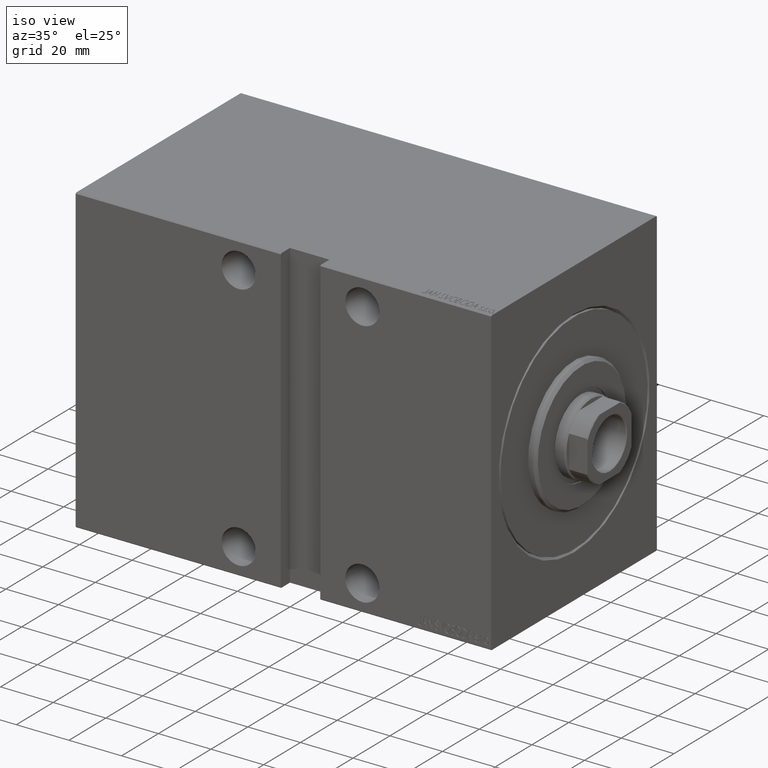
[diagram: clean part render]
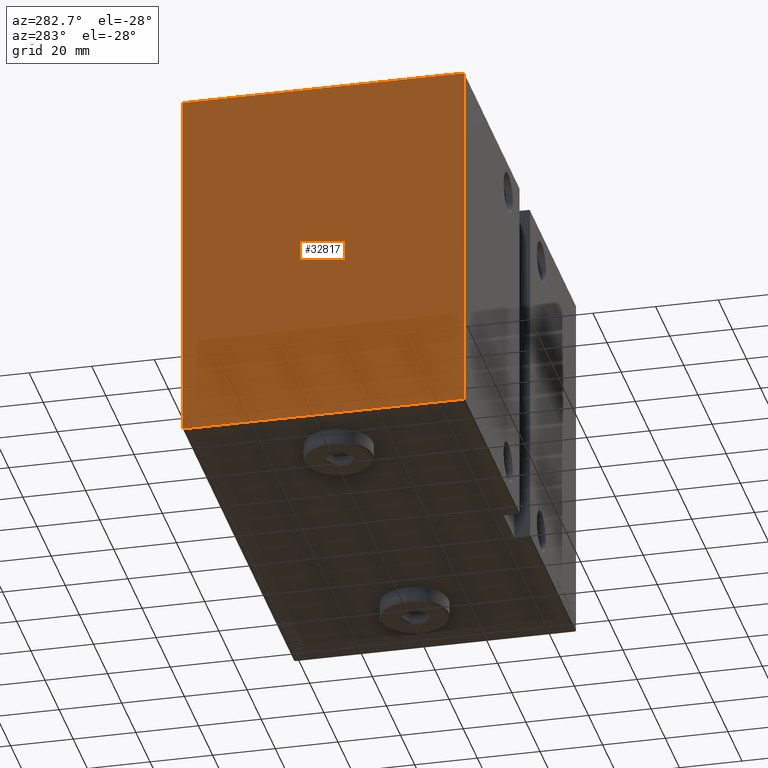
[diagram: tour spotlight — one face highlighted and labeled with its STEP entity id]
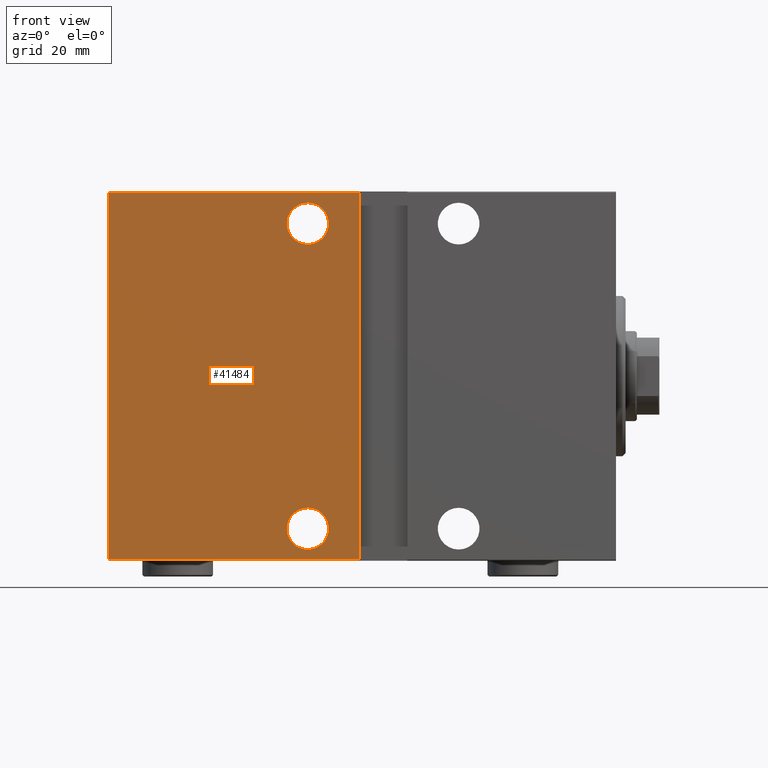
[diagram: tour spotlight — one face highlighted and labeled with its STEP entity id]
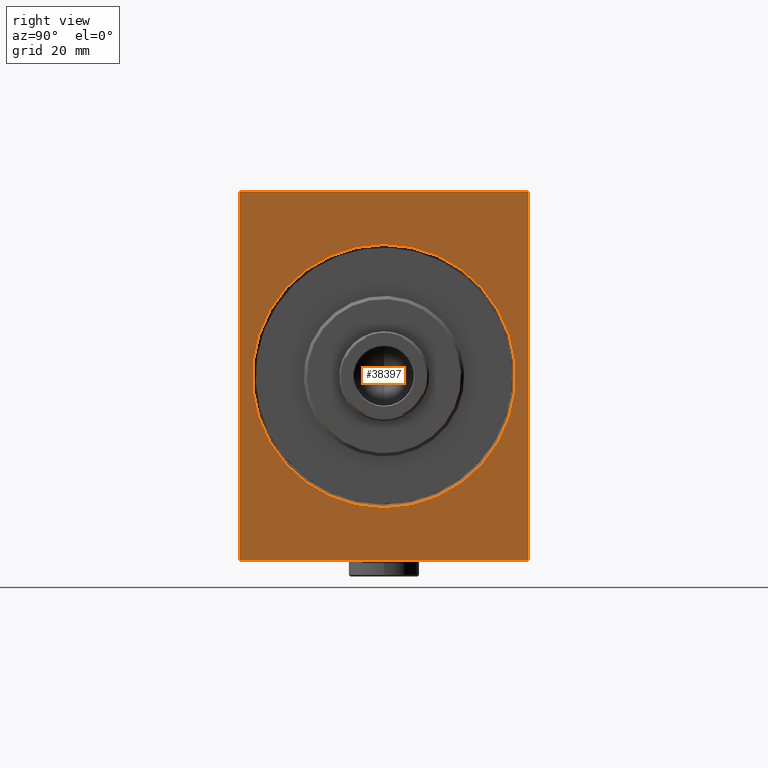
[diagram: tour spotlight — one face highlighted and labeled with its STEP entity id]
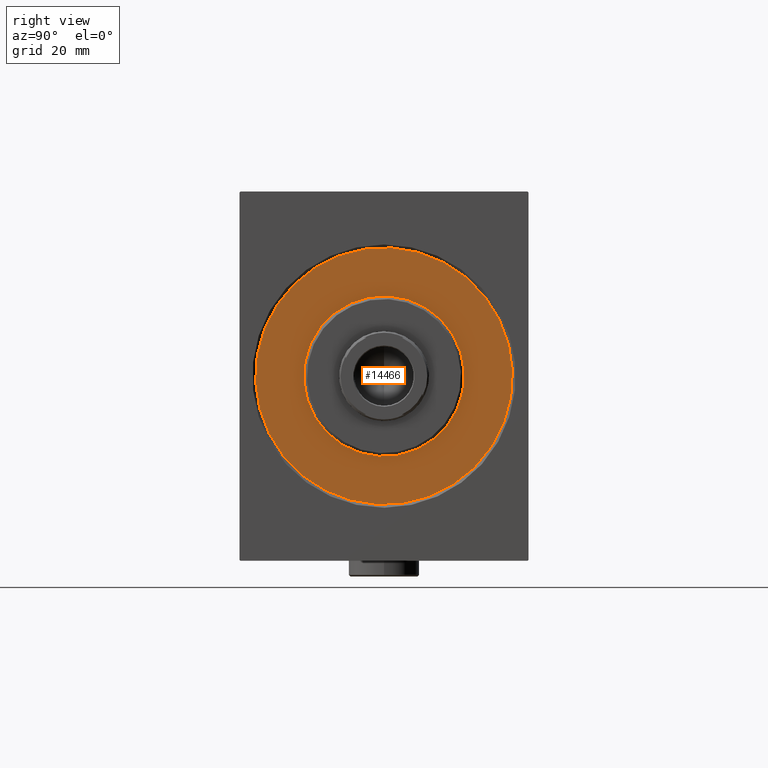
[diagram: tour spotlight — one face highlighted and labeled with its STEP entity id]
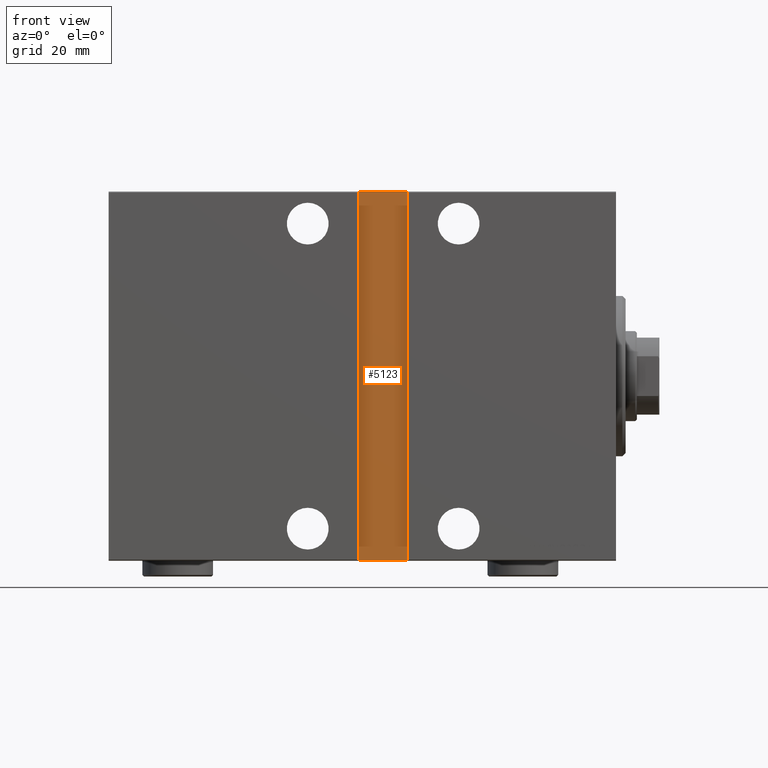
[diagram: tour spotlight — one face highlighted and labeled with its STEP entity id]
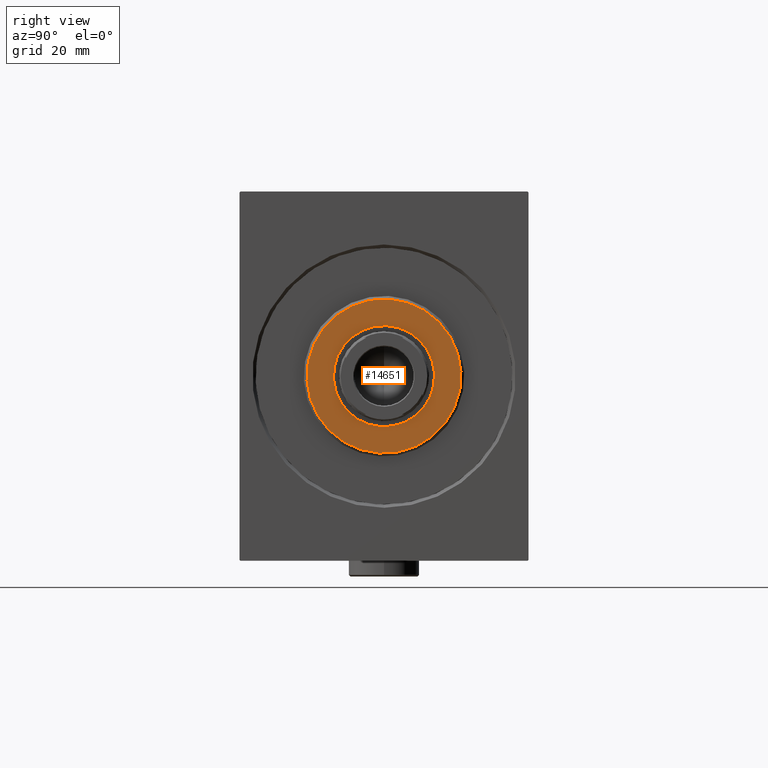
[diagram: tour spotlight — one face highlighted and labeled with its STEP entity id]
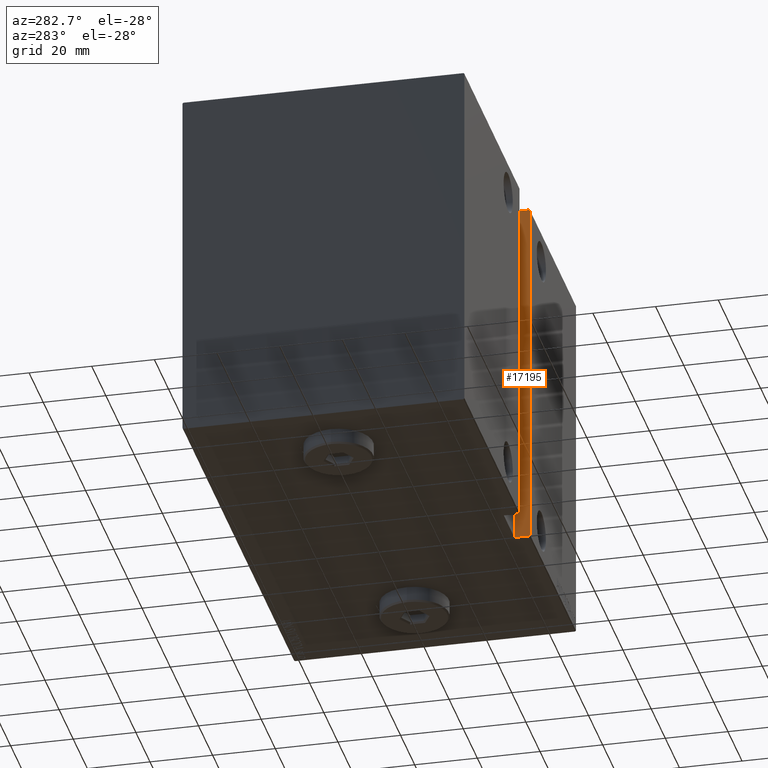
[diagram: tour spotlight — one face highlighted and labeled with its STEP entity id]
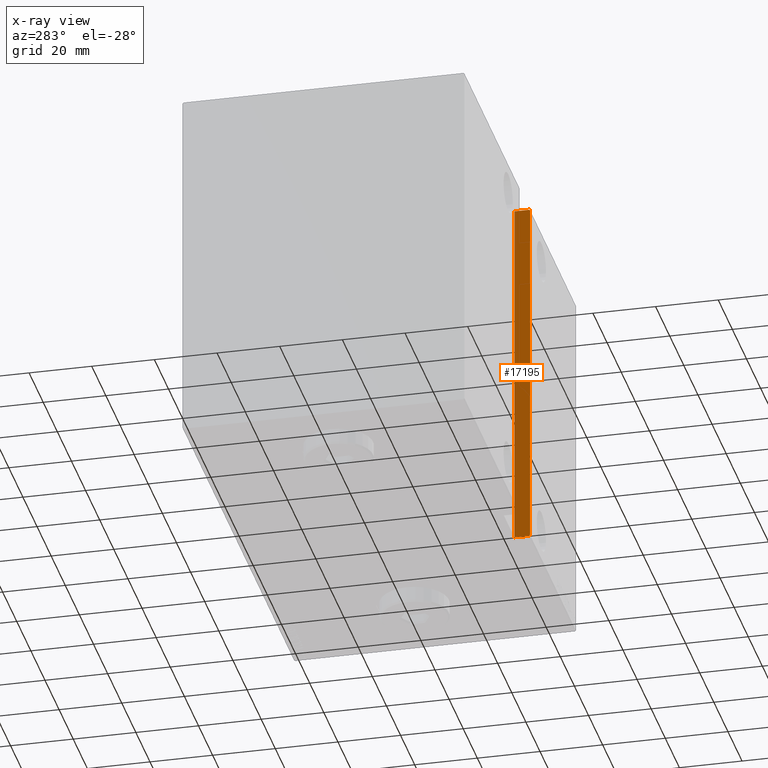
[diagram: x-ray of the same camera — body ghosted, this tour face saturated]
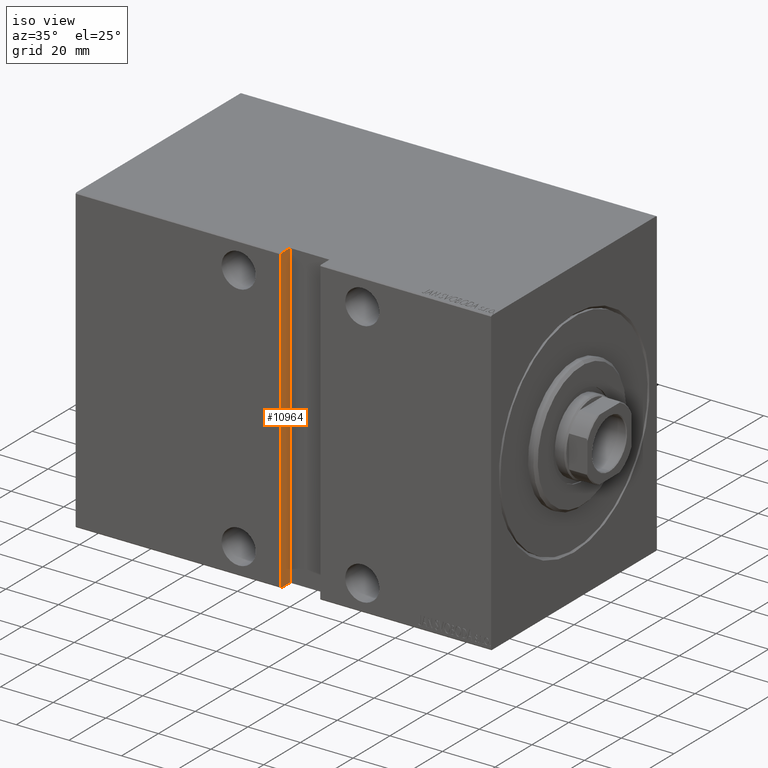
[diagram: tour spotlight — one face highlighted and labeled with its STEP entity id]
A machine part: a face-by-face anatomy tour. The part has 896 B-rep faces; the first image is the clean iso view, then the 8 largest visible faces are spotlighted one at a time (largest first), each with its STEP entity span.

Face 1 — auxiliary view, entity #32817. In plain terms, the highlighted planar face has unit normal (-1, -0, 0).
Definition (entity closure, byte-faithful):
#964 = EDGE_CURVE ( 'NONE', #18276, #14498, #41389, .T. ) ;
#1050 = VECTOR ( 'NONE', #1780, 1000.000000000000000 ) ;
#1780 = DIRECTION ( 'NONE',  ( 0.000000000000000000, 0.000000000000000000, -1.000000000000000000 ) ) ;
#2922 = DIRECTION ( 'NONE',  ( -0.000000000000000000, 0.7071067811865474617, 0.7071067811865474617 ) ) ;
#3777 = CARTESIAN_POINT ( 'NONE',  ( 158.0000000000000000, -51.10000000000000853, -51.10000000000000853 ) ) ;
#4077 = VECTOR ( 'NONE', #26246, 1000.000000000000114 ) ;
#4974 = ORIENTED_EDGE ( 'NONE', *, *, #34766, .T. ) ;
#5248 = VECTOR ( 'NONE', #33959, 1000.000000000000000 ) ;
#5304 = CARTESIAN_POINT ( 'NONE',  ( 158.0000000000000000, 0.000000000000000000, 0.000000000000000000 ) ) ;
#6036 = VERTEX_POINT ( 'NONE', #21885 ) ;
#6292 = ORIENTED_EDGE ( 'NONE', *, *, #11036, .T. ) ;
#6779 = VERTEX_POINT ( 'NONE', #24012 ) ;
#6945 = CARTESIAN_POINT ( 'NONE',  ( 158.0000000000000000, 45.00000000000000000, 57.50000000000000000 ) ) ;
#7689 = VERTEX_POINT ( 'NONE', #30496 ) ;
#8941 = LINE ( 'NONE', #39037, #27826 ) ;
#9773 = ORIENTED_EDGE ( 'NONE', *, *, #30019, .T. ) ;
#10048 = EDGE_CURVE ( 'NONE', #26257, #22293, #8941, .T. ) ;
#10626 = ORIENTED_EDGE ( 'NONE', *, *, #964, .T. ) ;
#11036 = EDGE_CURVE ( 'NONE', #16215, #7689, #37276, .T. ) ;
#13110 = CARTESIAN_POINT ( 'NONE',  ( 158.0000000000000000, 51.10000000000000853, -51.10000000000000853 ) ) ;
#13924 = ORIENTED_EDGE ( 'NONE', *, *, #42693, .T. ) ;
#14056 = EDGE_LOOP ( 'NONE', ( #9773, #34151, #19799, #4974, #6292, #13924, #23133, #10626 ) ) ;
#14417 = VECTOR ( 'NONE', #2922, 1000.000000000000114 ) ;
#14498 = VERTEX_POINT ( 'NONE', #17923 ) ;
#15241 = AXIS2_PLACEMENT_3D ( 'NONE', #5304, #31889, #18837 ) ;
#16215 = VERTEX_POINT ( 'NONE', #39485 ) ;
#17923 = CARTESIAN_POINT ( 'NONE',  ( 158.0000000000000000, -44.70000000000000284, -57.50000000000000711 ) ) ;
#18276 = VERTEX_POINT ( 'NONE', #31957 ) ;
#18837 = DIRECTION ( 'NONE',  ( -0.000000000000000000, 0.000000000000000000, -1.000000000000000000 ) ) ;
#18848 = LINE ( 'NONE', #28799, #1050 ) ;
#19799 = ORIENTED_EDGE ( 'NONE', *, *, #10048, .T. ) ;
#20286 = VECTOR ( 'NONE', #21196, 1000.000000000000114 ) ;
#20696 = CARTESIAN_POINT ( 'NONE',  ( 158.0000000000000000, -45.00000000000000000, -57.50000000000000711 ) ) ;
#21196 = DIRECTION ( 'NONE',  ( -0.000000000000000000, -0.7071067811865556774, 0.7071067811865392461 ) ) ;
#21268 = DIRECTION ( 'NONE',  ( -0.000000000000000000, 0.7071067811865474617, -0.7071067811865474617 ) ) ;
#21532 = VECTOR ( 'NONE', #30654, 1000.000000000000000 ) ;
#21885 = CARTESIAN_POINT ( 'NONE',  ( 158.0000000000000000, 44.69999999999997442, -57.50000000000000711 ) ) ;
#22293 = VERTEX_POINT ( 'NONE', #38269 ) ;
#23133 = ORIENTED_EDGE ( 'NONE', *, *, #29651, .T. ) ;
#23482 = VECTOR ( 'NONE', #21268, 1000.000000000000114 ) ;
#24012 = CARTESIAN_POINT ( 'NONE',  ( 158.0000000000000000, -45.00000000000000000, 57.20000000000001705 ) ) ;
#26246 = DIRECTION ( 'NONE',  ( -0.000000000000000000, -0.7071067811865474617, -0.7071067811865474617 ) ) ;
#26257 = VERTEX_POINT ( 'NONE', #42866 ) ;
#27714 = EDGE_CURVE ( 'NONE', #6036, #26257, #43644, .T. ) ;
#27826 = VECTOR ( 'NONE', #42370, 1000.000000000000000 ) ;
#28799 = CARTESIAN_POINT ( 'NONE',  ( 158.0000000000000000, -45.00000000000000000, 57.50000000000000711 ) ) ;
#29582 = CARTESIAN_POINT ( 'NONE',  ( 158.0000000000000000, -51.10000000000000853, 51.10000000000000853 ) ) ;
#29651 = EDGE_CURVE ( 'NONE', #6779, #18276, #18848, .T. ) ;
#30019 = EDGE_CURVE ( 'NONE', #14498, #6036, #31091, .T. ) ;
#30496 = CARTESIAN_POINT ( 'NONE',  ( 158.0000000000000000, -44.69999999999997442, 57.50000000000000711 ) ) ;
#30654 = DIRECTION ( 'NONE',  ( 0.000000000000000000, 1.000000000000000000, 0.000000000000000000 ) ) ;
#30943 = CARTESIAN_POINT ( 'NONE',  ( 158.0000000000000000, 51.09999999999949694, 51.10000000000068354 ) ) ;
#31091 = LINE ( 'NONE', #20696, #21532 ) ;
#31889 = DIRECTION ( 'NONE',  ( 1.000000000000000000, 0.000000000000000000, -0.000000000000000000 ) ) ;
#31957 = CARTESIAN_POINT ( 'NONE',  ( 158.0000000000000000, -45.00000000000000000, -57.19999999999998863 ) ) ;
#32101 = FACE_OUTER_BOUND ( 'NONE', #14056, .T. ) ;
#32817 = ADVANCED_FACE ( 'NONE', ( #32101 ), #35218, .T. ) ;
#33959 = DIRECTION ( 'NONE',  ( 0.000000000000000000, -1.000000000000000000, 7.709882115452476934E-17 ) ) ;
#34151 = ORIENTED_EDGE ( 'NONE', *, *, #27714, .T. ) ;
#34766 = EDGE_CURVE ( 'NONE', #22293, #16215, #38008, .T. ) ;
#35218 = PLANE ( 'NONE',  #15241 ) ;
#37276 = LINE ( 'NONE', #6945, #5248 ) ;
#38008 = LINE ( 'NONE', #30943, #20286 ) ;
#38269 = CARTESIAN_POINT ( 'NONE',  ( 158.0000000000000000, 45.00000000000000000, 57.20000000000001705 ) ) ;
#39037 = CARTESIAN_POINT ( 'NONE',  ( 158.0000000000000000, 45.00000000000000000, -57.50000000000000711 ) ) ;
#39485 = CARTESIAN_POINT ( 'NONE',  ( 158.0000000000000000, 44.70000000000003126, 57.50000000000000000 ) ) ;
#41389 = LINE ( 'NONE', #3777, #23482 ) ;
#42370 = DIRECTION ( 'NONE',  ( 0.000000000000000000, 0.000000000000000000, 1.000000000000000000 ) ) ;
#42693 = EDGE_CURVE ( 'NONE', #7689, #6779, #43064, .T. ) ;
#42866 = CARTESIAN_POINT ( 'NONE',  ( 158.0000000000000000, 45.00000000000000000, -57.20000000000001705 ) ) ;
#43064 = LINE ( 'NONE', #29582, #4077 ) ;
#43644 = LINE ( 'NONE', #13110, #14417 ) ;

Face 2 — front view, entity #41484. In plain terms, the highlighted planar face has unit normal (-0, 1, 0).
Definition (entity closure, byte-faithful):
#66 = DIRECTION ( 'NONE',  ( 0.000000000000000000, 1.000000000000000000, 0.000000000000000000 ) ) ;
#1466 = CIRCLE ( 'NONE', #7115, 6.500000000000005329 ) ;
#1671 = DIRECTION ( 'NONE',  ( -1.000000000000000000, 0.000000000000000000, 0.000000000000000000 ) ) ;
#1928 = CIRCLE ( 'NONE', #3369, 6.500000000000005329 ) ;
#2368 = EDGE_CURVE ( 'NONE', #21741, #37469, #1466, .T. ) ;
#2423 = EDGE_CURVE ( 'NONE', #8447, #7533, #37527, .T. ) ;
#3180 = DIRECTION ( 'NONE',  ( 0.000000000000000000, 0.000000000000000000, 1.000000000000000000 ) ) ;
#3369 = AXIS2_PLACEMENT_3D ( 'NONE', #3407, #66, #3180 ) ;
#3407 = CARTESIAN_POINT ( 'NONE',  ( 95.99999999999998579, 45.00000000000003553, -47.50000000000000000 ) ) ;
#3950 = EDGE_LOOP ( 'NONE', ( #40188, #43015, #39527, #14929 ) ) ;
#6622 = EDGE_CURVE ( 'NONE', #30734, #30838, #42889, .T. ) ;
#7115 = AXIS2_PLACEMENT_3D ( 'NONE', #27818, #41958, #28044 ) ;
#7533 = VERTEX_POINT ( 'NONE', #16570 ) ;
#7881 = CARTESIAN_POINT ( 'NONE',  ( 158.0000000000000000, 45.00000000000000000, -57.20000000000001705 ) ) ;
#8447 = VERTEX_POINT ( 'NONE', #40453 ) ;
#8461 = DIRECTION ( 'NONE',  ( 0.000000000000000000, 0.000000000000000000, 1.000000000000000000 ) ) ;
#8560 = EDGE_CURVE ( 'NONE', #30734, #22293, #40665, .T. ) ;
#8941 = LINE ( 'NONE', #39037, #27826 ) ;
#10048 = EDGE_CURVE ( 'NONE', #26257, #22293, #8941, .T. ) ;
#10717 = CARTESIAN_POINT ( 'NONE',  ( 158.0000000000000000, 45.00000000000000000, -57.50000000000000711 ) ) ;
#10782 = CARTESIAN_POINT ( 'NONE',  ( 158.0000000000000000, 45.00000000000000000, 57.20000000000004547 ) ) ;
#10843 = ORIENTED_EDGE ( 'NONE', *, *, #27668, .F. ) ;
#12658 = ORIENTED_EDGE ( 'NONE', *, *, #37919, .F. ) ;
#14324 = DIRECTION ( 'NONE',  ( 0.000000000000000000, 1.000000000000000000, 0.000000000000000000 ) ) ;
#14929 = ORIENTED_EDGE ( 'NONE', *, *, #8560, .T. ) ;
#16570 = CARTESIAN_POINT ( 'NONE',  ( 95.99999999999998579, 45.00000000000003553, 54.00000000000000711 ) ) ;
#17933 = EDGE_CURVE ( 'NONE', #26257, #30838, #35336, .T. ) ;
#20490 = PLANE ( 'NONE',  #38675 ) ;
#21465 = CARTESIAN_POINT ( 'NONE',  ( 95.99999999999998579, 45.00000000000003553, -54.00000000000000711 ) ) ;
#21741 = VERTEX_POINT ( 'NONE', #24276 ) ;
#22258 = VECTOR ( 'NONE', #1671, 1000.000000000000000 ) ;
#22293 = VERTEX_POINT ( 'NONE', #38269 ) ;
#23499 = EDGE_LOOP ( 'NONE', ( #31326, #12658 ) ) ;
#23804 = FACE_OUTER_BOUND ( 'NONE', #3950, .T. ) ;
#24105 = AXIS2_PLACEMENT_3D ( 'NONE', #41535, #14324, #41308 ) ;
#24276 = CARTESIAN_POINT ( 'NONE',  ( 95.99999999999998579, 45.00000000000003553, -40.99999999999999289 ) ) ;
#25295 = DIRECTION ( 'NONE',  ( 0.000000000000000000, 1.000000000000000000, 0.000000000000000000 ) ) ;
#25626 = DIRECTION ( 'NONE',  ( -1.206764157201257045E-16, 0.000000000000000000, -1.000000000000000000 ) ) ;
#26257 = VERTEX_POINT ( 'NONE', #42866 ) ;
#26696 = DIRECTION ( 'NONE',  ( 0.000000000000000000, -0.000000000000000000, -1.000000000000000000 ) ) ;
#27668 = EDGE_CURVE ( 'NONE', #7533, #8447, #34198, .T. ) ;
#27818 = CARTESIAN_POINT ( 'NONE',  ( 95.99999999999998579, 45.00000000000003553, -47.50000000000000000 ) ) ;
#27826 = VECTOR ( 'NONE', #42370, 1000.000000000000000 ) ;
#28044 = DIRECTION ( 'NONE',  ( 0.000000000000000000, 0.000000000000000000, 1.000000000000000000 ) ) ;
#28838 = CARTESIAN_POINT ( 'NONE',  ( 95.99999999999998579, 45.00000000000003553, 47.50000000000000000 ) ) ;
#30734 = VERTEX_POINT ( 'NONE', #35961 ) ;
#30838 = VERTEX_POINT ( 'NONE', #31063 ) ;
#31063 = CARTESIAN_POINT ( 'NONE',  ( 79.99999999999998579, 45.00000000000000000, -57.19999999999998863 ) ) ;
#31326 = ORIENTED_EDGE ( 'NONE', *, *, #2368, .F. ) ;
#33550 = CARTESIAN_POINT ( 'NONE',  ( 80.00000000000000000, 45.00000000000000000, 57.50000000000000711 ) ) ;
#34115 = VECTOR ( 'NONE', #25626, 1000.000000000000000 ) ;
#34198 = CIRCLE ( 'NONE', #43383, 6.500000000000005329 ) ;
#35336 = LINE ( 'NONE', #7881, #22258 ) ;
#35961 = CARTESIAN_POINT ( 'NONE',  ( 80.00000000000000000, 45.00000000000000000, 57.20000000000004547 ) ) ;
#36294 = VECTOR ( 'NONE', #37565, 1000.000000000000000 ) ;
#37099 = EDGE_LOOP ( 'NONE', ( #10843, #42976 ) ) ;
#37469 = VERTEX_POINT ( 'NONE', #21465 ) ;
#37527 = CIRCLE ( 'NONE', #24105, 6.500000000000005329 ) ;
#37565 = DIRECTION ( 'NONE',  ( 1.000000000000000000, 0.000000000000000000, 0.000000000000000000 ) ) ;
#37715 = DIRECTION ( 'NONE',  ( 0.000000000000000000, -1.000000000000000000, 0.000000000000000000 ) ) ;
#37919 = EDGE_CURVE ( 'NONE', #37469, #21741, #1928, .T. ) ;
#38269 = CARTESIAN_POINT ( 'NONE',  ( 158.0000000000000000, 45.00000000000000000, 57.20000000000001705 ) ) ;
#38675 = AXIS2_PLACEMENT_3D ( 'NONE', #10717, #37715, #26696 ) ;
#39037 = CARTESIAN_POINT ( 'NONE',  ( 158.0000000000000000, 45.00000000000000000, -57.50000000000000711 ) ) ;
#39527 = ORIENTED_EDGE ( 'NONE', *, *, #6622, .F. ) ;
#40188 = ORIENTED_EDGE ( 'NONE', *, *, #10048, .F. ) ;
#40453 = CARTESIAN_POINT ( 'NONE',  ( 95.99999999999998579, 45.00000000000003553, 40.99999999999999289 ) ) ;
#40603 = FACE_BOUND ( 'NONE', #23499, .T. ) ;
#40665 = LINE ( 'NONE', #10782, #36294 ) ;
#41032 = FACE_BOUND ( 'NONE', #37099, .T. ) ;
#41308 = DIRECTION ( 'NONE',  ( 0.000000000000000000, 0.000000000000000000, 1.000000000000000000 ) ) ;
#41484 = ADVANCED_FACE ( 'NONE', ( #40603, #41032, #23804 ), #20490, .F. ) ;
#41535 = CARTESIAN_POINT ( 'NONE',  ( 95.99999999999998579, 45.00000000000003553, 47.50000000000000000 ) ) ;
#41958 = DIRECTION ( 'NONE',  ( 0.000000000000000000, 1.000000000000000000, 0.000000000000000000 ) ) ;
#42370 = DIRECTION ( 'NONE',  ( 0.000000000000000000, 0.000000000000000000, 1.000000000000000000 ) ) ;
#42866 = CARTESIAN_POINT ( 'NONE',  ( 158.0000000000000000, 45.00000000000000000, -57.20000000000001705 ) ) ;
#42889 = LINE ( 'NONE', #33550, #34115 ) ;
#42976 = ORIENTED_EDGE ( 'NONE', *, *, #2423, .F. ) ;
#43015 = ORIENTED_EDGE ( 'NONE', *, *, #17933, .T. ) ;
#43383 = AXIS2_PLACEMENT_3D ( 'NONE', #28838, #25295, #8461 ) ;

Face 3 — right view, entity #38397. In plain terms, the highlighted planar face has unit normal (-1, -0, 0).
Definition (entity closure, byte-faithful):
#1338 = EDGE_CURVE ( 'NONE', #21367, #18859, #17370, .T. ) ;
#1433 = DIRECTION ( 'NONE',  ( 0.000000000000000000, 1.000000000000000000, 0.000000000000000000 ) ) ;
#2012 = CARTESIAN_POINT ( 'NONE',  ( 0.000000000000000000, 45.00000000000000000, 57.50000000000000000 ) ) ;
#2429 = DIRECTION ( 'NONE',  ( 1.000000000000000000, 0.000000000000000000, -0.000000000000000000 ) ) ;
#2965 = VECTOR ( 'NONE', #37055, 1000.000000000000114 ) ;
#3922 = CARTESIAN_POINT ( 'NONE',  ( 0.000000000000000000, 45.00000000000000000, 57.20000000000001705 ) ) ;
#4186 = CARTESIAN_POINT ( 'NONE',  ( 0.000000000000000000, -44.69999999999997442, 57.50000000000000711 ) ) ;
#4442 = EDGE_CURVE ( 'NONE', #42568, #8244, #10058, .T. ) ;
#4803 = CARTESIAN_POINT ( 'NONE',  ( 0.000000000000000000, -45.00000000000000000, 57.20000000000001705 ) ) ;
#5077 = ORIENTED_EDGE ( 'NONE', *, *, #38097, .T. ) ;
#5176 = LINE ( 'NONE', #31774, #34264 ) ;
#5303 = CARTESIAN_POINT ( 'NONE',  ( 0.000000000000000000, 0.000000000000000000, 0.000000000000000000 ) ) ;
#6037 = VECTOR ( 'NONE', #38537, 1000.000000000000114 ) ;
#6601 = FACE_BOUND ( 'NONE', #36843, .T. ) ;
#7489 = CIRCLE ( 'NONE', #15282, 41.00000000000000711 ) ;
#8244 = VERTEX_POINT ( 'NONE', #37831 ) ;
#9241 = VECTOR ( 'NONE', #14050, 1000.000000000000000 ) ;
#9487 = DIRECTION ( 'NONE',  ( 1.000000000000000000, 0.000000000000000000, -0.000000000000000000 ) ) ;
#9505 = DIRECTION ( 'NONE',  ( 0.000000000000000000, 0.000000000000000000, -1.000000000000000000 ) ) ;
#10058 = LINE ( 'NONE', #16057, #2965 ) ;
#10203 = DIRECTION ( 'NONE',  ( 0.000000000000000000, 0.000000000000000000, -1.000000000000000000 ) ) ;
#11112 = CARTESIAN_POINT ( 'NONE',  ( 0.000000000000000000, 45.00000000000000000, -57.20000000000001705 ) ) ;
#11320 = DIRECTION ( 'NONE',  ( 0.000000000000000000, 0.000000000000000000, -1.000000000000000000 ) ) ;
#11925 = VERTEX_POINT ( 'NONE', #40863 ) ;
#12330 = VECTOR ( 'NONE', #14716, 1000.000000000000114 ) ;
#12552 = ORIENTED_EDGE ( 'NONE', *, *, #36274, .F. ) ;
#13265 = PLANE ( 'NONE',  #28037 ) ;
#14022 = ORIENTED_EDGE ( 'NONE', *, *, #1338, .F. ) ;
#14050 = DIRECTION ( 'NONE',  ( 0.000000000000000000, 0.000000000000000000, 1.000000000000000000 ) ) ;
#14716 = DIRECTION ( 'NONE',  ( -0.000000000000000000, 0.7071067811865556774, -0.7071067811865392461 ) ) ;
#15282 = AXIS2_PLACEMENT_3D ( 'NONE', #5303, #2429, #9505 ) ;
#15526 = DIRECTION ( 'NONE',  ( 0.000000000000000000, -1.000000000000000000, 7.709882115452476934E-17 ) ) ;
#15592 = ORIENTED_EDGE ( 'NONE', *, *, #25668, .T. ) ;
#16057 = CARTESIAN_POINT ( 'NONE',  ( 0.000000000000000000, -44.70000000000000284, -57.50000000000000711 ) ) ;
#16160 = CARTESIAN_POINT ( 'NONE',  ( 0.000000000000000000, 0.000000000000000000, 0.000000000000000000 ) ) ;
#17370 = LINE ( 'NONE', #30873, #9241 ) ;
#17620 = LINE ( 'NONE', #24244, #42332 ) ;
#18859 = VERTEX_POINT ( 'NONE', #3922 ) ;
#19070 = CARTESIAN_POINT ( 'NONE',  ( 0.000000000000000000, -45.00000000000000000, 57.50000000000000711 ) ) ;
#19378 = EDGE_CURVE ( 'NONE', #21367, #26926, #21516, .T. ) ;
#19521 = CARTESIAN_POINT ( 'NONE',  ( 0.000000000000000000, 0.000000000000000000, 0.000000000000000000 ) ) ;
#19699 = FACE_OUTER_BOUND ( 'NONE', #27795, .T. ) ;
#20661 = EDGE_CURVE ( 'NONE', #28548, #11925, #7489, .T. ) ;
#21367 = VERTEX_POINT ( 'NONE', #42944 ) ;
#21516 = LINE ( 'NONE', #11112, #6037 ) ;
#21719 = CIRCLE ( 'NONE', #22447, 41.00000000000000711 ) ;
#22447 = AXIS2_PLACEMENT_3D ( 'NONE', #19521, #36985, #10203 ) ;
#22626 = ORIENTED_EDGE ( 'NONE', *, *, #20661, .T. ) ;
#23827 = ORIENTED_EDGE ( 'NONE', *, *, #30128, .T. ) ;
#24035 = DIRECTION ( 'NONE',  ( -0.000000000000000000, 0.7071067811865474617, 0.7071067811865474617 ) ) ;
#24244 = CARTESIAN_POINT ( 'NONE',  ( 0.000000000000000000, -45.00000000000000000, 57.20000000000001705 ) ) ;
#25222 = VERTEX_POINT ( 'NONE', #4186 ) ;
#25439 = VERTEX_POINT ( 'NONE', #4803 ) ;
#25668 = EDGE_CURVE ( 'NONE', #25439, #25222, #17620, .T. ) ;
#26926 = VERTEX_POINT ( 'NONE', #39436 ) ;
#27795 = EDGE_LOOP ( 'NONE', ( #38335, #23827, #14022, #42734, #34980, #42839, #12552, #15592 ) ) ;
#28037 = AXIS2_PLACEMENT_3D ( 'NONE', #16160, #9487, #36504 ) ;
#28548 = VERTEX_POINT ( 'NONE', #43434 ) ;
#30128 = EDGE_CURVE ( 'NONE', #42103, #18859, #35492, .T. ) ;
#30413 = EDGE_CURVE ( 'NONE', #42103, #25222, #39629, .T. ) ;
#30604 = CARTESIAN_POINT ( 'NONE',  ( 0.000000000000000000, -44.70000000000000284, -57.50000000000000711 ) ) ;
#30705 = EDGE_CURVE ( 'NONE', #42568, #26926, #5176, .T. ) ;
#30873 = CARTESIAN_POINT ( 'NONE',  ( 0.000000000000000000, 45.00000000000000000, -57.50000000000000711 ) ) ;
#31774 = CARTESIAN_POINT ( 'NONE',  ( 0.000000000000000000, -45.00000000000000000, -57.50000000000000711 ) ) ;
#34264 = VECTOR ( 'NONE', #1433, 1000.000000000000000 ) ;
#34980 = ORIENTED_EDGE ( 'NONE', *, *, #30705, .F. ) ;
#35492 = LINE ( 'NONE', #41904, #12330 ) ;
#35881 = LINE ( 'NONE', #19070, #42178 ) ;
#36274 = EDGE_CURVE ( 'NONE', #25439, #8244, #35881, .T. ) ;
#36504 = DIRECTION ( 'NONE',  ( -0.000000000000000000, 0.000000000000000000, -1.000000000000000000 ) ) ;
#36843 = EDGE_LOOP ( 'NONE', ( #5077, #22626 ) ) ;
#36985 = DIRECTION ( 'NONE',  ( 1.000000000000000000, 0.000000000000000000, -0.000000000000000000 ) ) ;
#37055 = DIRECTION ( 'NONE',  ( 0.000000000000000000, -0.7071067811865474617, 0.7071067811865474617 ) ) ;
#37831 = CARTESIAN_POINT ( 'NONE',  ( 0.000000000000000000, -45.00000000000000000, -57.19999999999998863 ) ) ;
#38060 = CARTESIAN_POINT ( 'NONE',  ( 0.000000000000000000, 44.70000000000003126, 57.50000000000000000 ) ) ;
#38097 = EDGE_CURVE ( 'NONE', #11925, #28548, #21719, .T. ) ;
#38335 = ORIENTED_EDGE ( 'NONE', *, *, #30413, .F. ) ;
#38397 = ADVANCED_FACE ( 'NONE', ( #6601, #19699 ), #13265, .F. ) ;
#38483 = VECTOR ( 'NONE', #15526, 1000.000000000000000 ) ;
#38537 = DIRECTION ( 'NONE',  ( -0.000000000000000000, -0.7071067811865474617, -0.7071067811865474617 ) ) ;
#39436 = CARTESIAN_POINT ( 'NONE',  ( 0.000000000000000000, 44.69999999999997442, -57.50000000000000711 ) ) ;
#39629 = LINE ( 'NONE', #2012, #38483 ) ;
#40863 = CARTESIAN_POINT ( 'NONE',  ( 0.000000000000000000, 0.000000000000000000, 41.00000000000000711 ) ) ;
#41904 = CARTESIAN_POINT ( 'NONE',  ( 0.000000000000000000, 44.70000000000003126, 57.50000000000000000 ) ) ;
#42103 = VERTEX_POINT ( 'NONE', #38060 ) ;
#42178 = VECTOR ( 'NONE', #11320, 1000.000000000000000 ) ;
#42332 = VECTOR ( 'NONE', #24035, 1000.000000000000114 ) ;
#42568 = VERTEX_POINT ( 'NONE', #30604 ) ;
#42734 = ORIENTED_EDGE ( 'NONE', *, *, #19378, .T. ) ;
#42839 = ORIENTED_EDGE ( 'NONE', *, *, #4442, .T. ) ;
#42944 = CARTESIAN_POINT ( 'NONE',  ( 0.000000000000000000, 45.00000000000000000, -57.20000000000001705 ) ) ;
#43434 = CARTESIAN_POINT ( 'NONE',  ( 0.000000000000000000, 5.021051876504148963E-15, -41.00000000000000711 ) ) ;

Face 4 — right view, entity #14466. In plain terms, the highlighted planar face has unit normal (-1, 0, 0).
Definition (entity closure, byte-faithful):
#41 = EDGE_CURVE ( 'NONE', #13740, #18207, #33350, .T. ) ;
#1180 = AXIS2_PLACEMENT_3D ( 'NONE', #2101, #15616, #29111 ) ;
#2101 = CARTESIAN_POINT ( 'NONE',  ( 0.000000000000000000, 0.000000000000000000, 0.000000000000000000 ) ) ;
#2664 = CARTESIAN_POINT ( 'NONE',  ( 0.000000000000000000, 3.061616997868383043E-15, -25.00000000000000000 ) ) ;
#2671 = PLANE ( 'NONE',  #34302 ) ;
#3476 = EDGE_LOOP ( 'NONE', ( #34755, #10908 ) ) ;
#4503 = DIRECTION ( 'NONE',  ( 1.000000000000000000, -0.000000000000000000, 0.000000000000000000 ) ) ;
#6875 = DIRECTION ( 'NONE',  ( 1.000000000000000000, -0.000000000000000000, 0.000000000000000000 ) ) ;
#8580 = AXIS2_PLACEMENT_3D ( 'NONE', #26596, #6875, #33244 ) ;
#10908 = ORIENTED_EDGE ( 'NONE', *, *, #41, .F. ) ;
#12521 = CARTESIAN_POINT ( 'NONE',  ( 0.000000000000000000, 0.000000000000000000, -40.00000000000000000 ) ) ;
#13064 = DIRECTION ( 'NONE',  ( -1.000000000000000000, 0.000000000000000000, 0.000000000000000000 ) ) ;
#13306 = EDGE_CURVE ( 'NONE', #18207, #13740, #36396, .T. ) ;
#13504 = FACE_OUTER_BOUND ( 'NONE', #16773, .T. ) ;
#13740 = VERTEX_POINT ( 'NONE', #2664 ) ;
#13799 = CIRCLE ( 'NONE', #42056, 40.00000000000000000 ) ;
#14266 = CARTESIAN_POINT ( 'NONE',  ( 0.000000000000000000, 0.000000000000000000, 25.00000000000000000 ) ) ;
#14466 = ADVANCED_FACE ( 'NONE', ( #16622, #13504 ), #2671, .F. ) ;
#14763 = EDGE_CURVE ( 'NONE', #21911, #33810, #13799, .T. ) ;
#15616 = DIRECTION ( 'NONE',  ( -1.000000000000000000, 0.000000000000000000, 0.000000000000000000 ) ) ;
#16602 = AXIS2_PLACEMENT_3D ( 'NONE', #37927, #4503, #27549 ) ;
#16622 = FACE_BOUND ( 'NONE', #3476, .T. ) ;
#16773 = EDGE_LOOP ( 'NONE', ( #36375, #35092 ) ) ;
#18207 = VERTEX_POINT ( 'NONE', #14266 ) ;
#21911 = VERTEX_POINT ( 'NONE', #12521 ) ;
#23601 = EDGE_CURVE ( 'NONE', #33810, #21911, #40078, .T. ) ;
#26596 = CARTESIAN_POINT ( 'NONE',  ( 0.000000000000000000, 0.000000000000000000, 0.000000000000000000 ) ) ;
#27549 = DIRECTION ( 'NONE',  ( 0.000000000000000000, 0.000000000000000000, -1.000000000000000000 ) ) ;
#28747 = CARTESIAN_POINT ( 'NONE',  ( 0.000000000000000000, 4.898587196589413026E-15, 40.00000000000000000 ) ) ;
#29111 = DIRECTION ( 'NONE',  ( 0.000000000000000000, 0.000000000000000000, 1.000000000000000000 ) ) ;
#29895 = CARTESIAN_POINT ( 'NONE',  ( 0.000000000000000000, 0.000000000000000000, 0.000000000000000000 ) ) ;
#33244 = DIRECTION ( 'NONE',  ( 0.000000000000000000, 0.000000000000000000, -1.000000000000000000 ) ) ;
#33350 = CIRCLE ( 'NONE', #8580, 25.00000000000000000 ) ;
#33810 = VERTEX_POINT ( 'NONE', #28747 ) ;
#34302 = AXIS2_PLACEMENT_3D ( 'NONE', #29895, #13064, #40065 ) ;
#34755 = ORIENTED_EDGE ( 'NONE', *, *, #13306, .F. ) ;
#35092 = ORIENTED_EDGE ( 'NONE', *, *, #23601, .F. ) ;
#36375 = ORIENTED_EDGE ( 'NONE', *, *, #14763, .F. ) ;
#36396 = CIRCLE ( 'NONE', #16602, 25.00000000000000000 ) ;
#36490 = CARTESIAN_POINT ( 'NONE',  ( 0.000000000000000000, 0.000000000000000000, 0.000000000000000000 ) ) ;
#37927 = CARTESIAN_POINT ( 'NONE',  ( 0.000000000000000000, 0.000000000000000000, 0.000000000000000000 ) ) ;
#39574 = DIRECTION ( 'NONE',  ( 0.000000000000000000, 0.000000000000000000, 1.000000000000000000 ) ) ;
#40065 = DIRECTION ( 'NONE',  ( 0.000000000000000000, 0.000000000000000000, 1.000000000000000000 ) ) ;
#40078 = CIRCLE ( 'NONE', #1180, 40.00000000000000000 ) ;
#42056 = AXIS2_PLACEMENT_3D ( 'NONE', #36490, #43115, #39574 ) ;
#43115 = DIRECTION ( 'NONE',  ( -1.000000000000000000, 0.000000000000000000, 0.000000000000000000 ) ) ;

Face 5 — front view, entity #5123. In plain terms, the highlighted planar face has unit normal (0, -1, -0).
Definition (entity closure, byte-faithful):
#90 = DIRECTION ( 'NONE',  ( -0.000000000000000000, 1.000000000000000000, 0.000000000000000000 ) ) ;
#218 = DIRECTION ( 'NONE',  ( 1.000000000000000000, 0.000000000000000000, 0.000000000000000000 ) ) ;
#2839 = EDGE_CURVE ( 'NONE', #13969, #17073, #20593, .T. ) ;
#3662 = CARTESIAN_POINT ( 'NONE',  ( 65.00000000000000000, 40.00000000000000000, -57.50000000000000711 ) ) ;
#3854 = CARTESIAN_POINT ( 'NONE',  ( 65.00000000000001421, 40.00000000000000000, 57.50000000000000711 ) ) ;
#4776 = DIRECTION ( 'NONE',  ( -1.206764157201257045E-16, 0.000000000000000000, -1.000000000000000000 ) ) ;
#5123 = ADVANCED_FACE ( 'NONE', ( #28676 ), #11855, .T. ) ;
#7144 = CARTESIAN_POINT ( 'NONE',  ( 80.00000000000000000, 40.00000000000000000, 57.50000000000000711 ) ) ;
#8086 = LINE ( 'NONE', #24704, #10910 ) ;
#8895 = VERTEX_POINT ( 'NONE', #3662 ) ;
#9603 = ORIENTED_EDGE ( 'NONE', *, *, #42350, .F. ) ;
#9983 = VECTOR ( 'NONE', #218, 1000.000000000000000 ) ;
#10779 = EDGE_CURVE ( 'NONE', #17073, #18375, #14354, .T. ) ;
#10910 = VECTOR ( 'NONE', #4776, 1000.000000000000000 ) ;
#11116 = EDGE_LOOP ( 'NONE', ( #9603, #24574, #19346, #18493 ) ) ;
#11855 = PLANE ( 'NONE',  #38996 ) ;
#12005 = EDGE_CURVE ( 'NONE', #13969, #8895, #8086, .T. ) ;
#13969 = VERTEX_POINT ( 'NONE', #3854 ) ;
#14354 = LINE ( 'NONE', #34057, #28580 ) ;
#16857 = CARTESIAN_POINT ( 'NONE',  ( 65.00000000000001421, 40.00000000000000000, 57.50000000000000711 ) ) ;
#17073 = VERTEX_POINT ( 'NONE', #7144 ) ;
#18375 = VERTEX_POINT ( 'NONE', #42127 ) ;
#18493 = ORIENTED_EDGE ( 'NONE', *, *, #10779, .T. ) ;
#19346 = ORIENTED_EDGE ( 'NONE', *, *, #2839, .T. ) ;
#20593 = LINE ( 'NONE', #16857, #9983 ) ;
#23569 = DIRECTION ( 'NONE',  ( 0.000000000000000000, -0.000000000000000000, 1.000000000000000000 ) ) ;
#24504 = LINE ( 'NONE', #40658, #40819 ) ;
#24574 = ORIENTED_EDGE ( 'NONE', *, *, #12005, .F. ) ;
#24704 = CARTESIAN_POINT ( 'NONE',  ( 65.00000000000001421, 40.00000000000000000, 57.50000000000000711 ) ) ;
#25353 = CARTESIAN_POINT ( 'NONE',  ( 0.000000000000000000, 40.00000000000000000, 0.000000000000000000 ) ) ;
#26983 = DIRECTION ( 'NONE',  ( -1.206764157201257045E-16, 0.000000000000000000, -1.000000000000000000 ) ) ;
#28580 = VECTOR ( 'NONE', #26983, 1000.000000000000000 ) ;
#28676 = FACE_OUTER_BOUND ( 'NONE', #11116, .T. ) ;
#34057 = CARTESIAN_POINT ( 'NONE',  ( 80.00000000000000000, 40.00000000000000000, 57.50000000000000711 ) ) ;
#37771 = DIRECTION ( 'NONE',  ( 1.000000000000000000, 0.000000000000000000, 0.000000000000000000 ) ) ;
#38996 = AXIS2_PLACEMENT_3D ( 'NONE', #25353, #90, #23569 ) ;
#40658 = CARTESIAN_POINT ( 'NONE',  ( 65.00000000000000000, 40.00000000000000000, -57.50000000000000711 ) ) ;
#40819 = VECTOR ( 'NONE', #37771, 1000.000000000000000 ) ;
#42127 = CARTESIAN_POINT ( 'NONE',  ( 80.00000000000000000, 39.99999999999999289, -57.50000000000000711 ) ) ;
#42350 = EDGE_CURVE ( 'NONE', #8895, #18375, #24504, .T. ) ;

Face 6 — right view, entity #14651. In plain terms, the highlighted planar face has unit normal (1, -0, -0).
Definition (entity closure, byte-faithful):
#410 = ORIENTED_EDGE ( 'NONE', *, *, #10120, .F. ) ;
#1063 = AXIS2_PLACEMENT_3D ( 'NONE', #28318, #8158, #28529 ) ;
#1679 = AXIS2_PLACEMENT_3D ( 'NONE', #10045, #16046, #9378 ) ;
#3521 = VERTEX_POINT ( 'NONE', #7623 ) ;
#5297 = AXIS2_PLACEMENT_3D ( 'NONE', #38787, #28839, #42328 ) ;
#7623 = CARTESIAN_POINT ( 'NONE',  ( 3.000000000000000000, 1.928818708657081344E-15, 15.75000000000000000 ) ) ;
#7866 = CARTESIAN_POINT ( 'NONE',  ( 3.000000000000000000, 0.000000000000000000, -15.75000000000000000 ) ) ;
#8158 = DIRECTION ( 'NONE',  ( 1.000000000000000000, -0.000000000000000000, 0.000000000000000000 ) ) ;
#8449 = DIRECTION ( 'NONE',  ( 0.000000000000000000, 0.000000000000000000, -1.000000000000000000 ) ) ;
#9378 = DIRECTION ( 'NONE',  ( 0.000000000000000000, 0.000000000000000000, -1.000000000000000000 ) ) ;
#9633 = CIRCLE ( 'NONE', #42829, 15.75000000000000000 ) ;
#10045 = CARTESIAN_POINT ( 'NONE',  ( 3.000000000000000000, 0.000000000000000000, 0.000000000000000000 ) ) ;
#10095 = VERTEX_POINT ( 'NONE', #30204 ) ;
#10120 = EDGE_CURVE ( 'NONE', #23618, #3521, #23610, .T. ) ;
#10312 = DIRECTION ( 'NONE',  ( 1.000000000000000000, -0.000000000000000000, 0.000000000000000000 ) ) ;
#14651 = ADVANCED_FACE ( 'NONE', ( #15035, #14825 ), #42237, .T. ) ;
#14825 = FACE_BOUND ( 'NONE', #29246, .T. ) ;
#15035 = FACE_OUTER_BOUND ( 'NONE', #29107, .T. ) ;
#16046 = DIRECTION ( 'NONE',  ( 1.000000000000000000, 0.000000000000000000, 0.000000000000000000 ) ) ;
#16487 = EDGE_CURVE ( 'NONE', #3521, #23618, #9633, .T. ) ;
#21366 = CARTESIAN_POINT ( 'NONE',  ( 3.000000000000000000, 0.000000000000000000, 0.000000000000000000 ) ) ;
#21844 = AXIS2_PLACEMENT_3D ( 'NONE', #21366, #10312, #34861 ) ;
#22385 = CARTESIAN_POINT ( 'NONE',  ( 3.000000000000000000, 3.000384657911015074E-15, -23.99999999999999289 ) ) ;
#23271 = CIRCLE ( 'NONE', #21844, 23.99999999999999289 ) ;
#23610 = CIRCLE ( 'NONE', #1679, 15.75000000000000000 ) ;
#23618 = VERTEX_POINT ( 'NONE', #7866 ) ;
#25185 = ORIENTED_EDGE ( 'NONE', *, *, #16487, .F. ) ;
#25781 = EDGE_CURVE ( 'NONE', #10095, #36122, #23271, .T. ) ;
#26372 = DIRECTION ( 'NONE',  ( 1.000000000000000000, 0.000000000000000000, 0.000000000000000000 ) ) ;
#28318 = CARTESIAN_POINT ( 'NONE',  ( 3.000000000000000000, 0.000000000000000000, 0.000000000000000000 ) ) ;
#28529 = DIRECTION ( 'NONE',  ( 0.000000000000000000, 0.000000000000000000, -1.000000000000000000 ) ) ;
#28839 = DIRECTION ( 'NONE',  ( 1.000000000000000000, -0.000000000000000000, 0.000000000000000000 ) ) ;
#29107 = EDGE_LOOP ( 'NONE', ( #38240, #39933 ) ) ;
#29246 = EDGE_LOOP ( 'NONE', ( #410, #25185 ) ) ;
#30204 = CARTESIAN_POINT ( 'NONE',  ( 3.000000000000000000, 0.000000000000000000, 23.99999999999999289 ) ) ;
#31786 = EDGE_CURVE ( 'NONE', #36122, #10095, #37110, .T. ) ;
#34861 = DIRECTION ( 'NONE',  ( 0.000000000000000000, 0.000000000000000000, -1.000000000000000000 ) ) ;
#36122 = VERTEX_POINT ( 'NONE', #22385 ) ;
#37110 = CIRCLE ( 'NONE', #5297, 23.99999999999999289 ) ;
#38240 = ORIENTED_EDGE ( 'NONE', *, *, #25781, .T. ) ;
#38787 = CARTESIAN_POINT ( 'NONE',  ( 3.000000000000000000, 0.000000000000000000, 0.000000000000000000 ) ) ;
#39933 = ORIENTED_EDGE ( 'NONE', *, *, #31786, .T. ) ;
#42237 = PLANE ( 'NONE',  #1063 ) ;
#42328 = DIRECTION ( 'NONE',  ( 0.000000000000000000, 0.000000000000000000, -1.000000000000000000 ) ) ;
#42829 = AXIS2_PLACEMENT_3D ( 'NONE', #43184, #26372, #8449 ) ;
#43184 = CARTESIAN_POINT ( 'NONE',  ( 3.000000000000000000, 0.000000000000000000, 0.000000000000000000 ) ) ;

Face 7 — auxiliary view, entity #17195. An x-ray twin of the same camera follows (body ghosted, this face saturated) — the face is partly hidden behind the body. In plain terms, the highlighted planar face has unit normal (-1, -0, -0).
Definition (entity closure, byte-faithful):
#579 = VERTEX_POINT ( 'NONE', #30845 ) ;
#1166 = FACE_OUTER_BOUND ( 'NONE', #11898, .T. ) ;
#2082 = ORIENTED_EDGE ( 'NONE', *, *, #24582, .F. ) ;
#2945 = CARTESIAN_POINT ( 'NONE',  ( 65.00000000000001421, 40.00000000000000000, 57.50000000000000711 ) ) ;
#3662 = CARTESIAN_POINT ( 'NONE',  ( 65.00000000000000000, 40.00000000000000000, -57.50000000000000711 ) ) ;
#3854 = CARTESIAN_POINT ( 'NONE',  ( 65.00000000000001421, 40.00000000000000000, 57.50000000000000711 ) ) ;
#4264 = CARTESIAN_POINT ( 'NONE',  ( 65.00000000000000000, 99.85000000000002274, -2.350000000000004974 ) ) ;
#4776 = DIRECTION ( 'NONE',  ( -1.206764157201257045E-16, 0.000000000000000000, -1.000000000000000000 ) ) ;
#4823 = EDGE_CURVE ( 'NONE', #20179, #21059, #15452, .T. ) ;
#4871 = ORIENTED_EDGE ( 'NONE', *, *, #26731, .T. ) ;
#6995 = LINE ( 'NONE', #31118, #30951 ) ;
#7492 = AXIS2_PLACEMENT_3D ( 'NONE', #35465, #21760, #35257 ) ;
#7853 = ORIENTED_EDGE ( 'NONE', *, *, #18444, .F. ) ;
#8086 = LINE ( 'NONE', #24704, #10910 ) ;
#8895 = VERTEX_POINT ( 'NONE', #3662 ) ;
#10671 = ORIENTED_EDGE ( 'NONE', *, *, #12005, .T. ) ;
#10910 = VECTOR ( 'NONE', #4776, 1000.000000000000000 ) ;
#11131 = DIRECTION ( 'NONE',  ( 8.533111188498778777E-17, 0.7071067811865474617, 0.7071067811865474617 ) ) ;
#11688 = CARTESIAN_POINT ( 'NONE',  ( 65.00000000000000000, 45.00000000000000000, -57.19999999999998863 ) ) ;
#11898 = EDGE_LOOP ( 'NONE', ( #2082, #41989, #7853, #10671, #18536, #4871 ) ) ;
#12005 = EDGE_CURVE ( 'NONE', #13969, #8895, #8086, .T. ) ;
#13861 = DIRECTION ( 'NONE',  ( -0.000000000000000000, 1.000000000000000000, -0.000000000000000000 ) ) ;
#13969 = VERTEX_POINT ( 'NONE', #3854 ) ;
#15383 = VECTOR ( 'NONE', #42113, 1000.000000000000000 ) ;
#15452 = LINE ( 'NONE', #28726, #42539 ) ;
#17195 = ADVANCED_FACE ( 'NONE', ( #1166 ), #34819, .T. ) ;
#18444 = EDGE_CURVE ( 'NONE', #13969, #21059, #26409, .T. ) ;
#18536 = ORIENTED_EDGE ( 'NONE', *, *, #38802, .T. ) ;
#20179 = VERTEX_POINT ( 'NONE', #41018 ) ;
#20435 = DIRECTION ( 'NONE',  ( -0.000000000000000000, 1.000000000000000000, -0.000000000000000000 ) ) ;
#20895 = LINE ( 'NONE', #28405, #15383 ) ;
#21059 = VERTEX_POINT ( 'NONE', #31739 ) ;
#21760 = DIRECTION ( 'NONE',  ( 1.000000000000000000, 0.000000000000000000, -1.206764157201257045E-16 ) ) ;
#24582 = EDGE_CURVE ( 'NONE', #20179, #33200, #20895, .T. ) ;
#24704 = CARTESIAN_POINT ( 'NONE',  ( 65.00000000000001421, 40.00000000000000000, 57.50000000000000711 ) ) ;
#25184 = DIRECTION ( 'NONE',  ( 8.533111188498677704E-17, -0.7071067811865556774, 0.7071067811865392461 ) ) ;
#26409 = LINE ( 'NONE', #2945, #34996 ) ;
#26731 = EDGE_CURVE ( 'NONE', #579, #33200, #37272, .T. ) ;
#28405 = CARTESIAN_POINT ( 'NONE',  ( 65.00000000000001421, 45.00000000000000000, 57.50000000000000711 ) ) ;
#28726 = CARTESIAN_POINT ( 'NONE',  ( 65.00000000000001421, 42.34999999999995879, 59.85000000000002274 ) ) ;
#30845 = CARTESIAN_POINT ( 'NONE',  ( 65.00000000000000000, 44.70000000000000284, -57.50000000000000711 ) ) ;
#30951 = VECTOR ( 'NONE', #13861, 1000.000000000000000 ) ;
#31118 = CARTESIAN_POINT ( 'NONE',  ( 65.00000000000000000, 40.00000000000000000, -57.50000000000000711 ) ) ;
#31739 = CARTESIAN_POINT ( 'NONE',  ( 65.00000000000001421, 44.70000000000003126, 57.50000000000000711 ) ) ;
#33200 = VERTEX_POINT ( 'NONE', #11688 ) ;
#34819 = PLANE ( 'NONE',  #7492 ) ;
#34996 = VECTOR ( 'NONE', #20435, 1000.000000000000000 ) ;
#35257 = DIRECTION ( 'NONE',  ( -1.206764157201257045E-16, 0.000000000000000000, -1.000000000000000000 ) ) ;
#35465 = CARTESIAN_POINT ( 'NONE',  ( 65.00000000000001421, 40.00000000000000000, 57.50000000000000711 ) ) ;
#35955 = VECTOR ( 'NONE', #11131, 1000.000000000000114 ) ;
#37272 = LINE ( 'NONE', #4264, #35955 ) ;
#38802 = EDGE_CURVE ( 'NONE', #8895, #579, #6995, .T. ) ;
#41018 = CARTESIAN_POINT ( 'NONE',  ( 65.00000000000001421, 45.00000000000000000, 57.20000000000004547 ) ) ;
#41989 = ORIENTED_EDGE ( 'NONE', *, *, #4823, .T. ) ;
#42113 = DIRECTION ( 'NONE',  ( -1.206764157201257045E-16, 0.000000000000000000, -1.000000000000000000 ) ) ;
#42539 = VECTOR ( 'NONE', #25184, 1000.000000000000114 ) ;

Face 8 — iso view, entity #10964. In plain terms, the highlighted planar face has unit normal (-1, -0, -0).
Definition (entity closure, byte-faithful):
#608 = CARTESIAN_POINT ( 'NONE',  ( 79.99999999999998579, 44.70000000000000284, -57.50000000000000711 ) ) ;
#1806 = VECTOR ( 'NONE', #24511, 1000.000000000000000 ) ;
#2143 = DIRECTION ( 'NONE',  ( 1.000000000000000000, 0.000000000000000000, -1.206764157201257045E-16 ) ) ;
#3131 = VERTEX_POINT ( 'NONE', #608 ) ;
#4367 = EDGE_LOOP ( 'NONE', ( #13048, #29695, #15546, #30959, #18690, #33067 ) ) ;
#6616 = VECTOR ( 'NONE', #39596, 1000.000000000000114 ) ;
#6622 = EDGE_CURVE ( 'NONE', #30734, #30838, #42889, .T. ) ;
#7144 = CARTESIAN_POINT ( 'NONE',  ( 80.00000000000000000, 40.00000000000000000, 57.50000000000000711 ) ) ;
#7364 = AXIS2_PLACEMENT_3D ( 'NONE', #36628, #2143, #29985 ) ;
#7929 = CARTESIAN_POINT ( 'NONE',  ( 79.99999999999998579, 40.00000000000000000, -57.50000000000000711 ) ) ;
#8148 = DIRECTION ( 'NONE',  ( -0.000000000000000000, 1.000000000000000000, -0.000000000000000000 ) ) ;
#10126 = CARTESIAN_POINT ( 'NONE',  ( 79.99999999999998579, 45.00000000000000711, -57.20000000000000995 ) ) ;
#10672 = EDGE_CURVE ( 'NONE', #26312, #30734, #32529, .T. ) ;
#10779 = EDGE_CURVE ( 'NONE', #17073, #18375, #14354, .T. ) ;
#10964 = ADVANCED_FACE ( 'NONE', ( #26670 ), #20252, .F. ) ;
#13048 = ORIENTED_EDGE ( 'NONE', *, *, #6622, .T. ) ;
#14331 = LINE ( 'NONE', #14779, #1806 ) ;
#14354 = LINE ( 'NONE', #34057, #28580 ) ;
#14779 = CARTESIAN_POINT ( 'NONE',  ( 80.00000000000000000, 40.00000000000000000, 57.50000000000000711 ) ) ;
#14874 = EDGE_CURVE ( 'NONE', #17073, #26312, #14331, .T. ) ;
#15546 = ORIENTED_EDGE ( 'NONE', *, *, #33167, .F. ) ;
#15656 = CARTESIAN_POINT ( 'NONE',  ( 80.00000000000000000, 44.70000000000003126, 57.50000000000000711 ) ) ;
#16795 = DIRECTION ( 'NONE',  ( -8.533111188498778777E-17, -0.7071067811865474617, -0.7071067811865474617 ) ) ;
#17073 = VERTEX_POINT ( 'NONE', #7144 ) ;
#17792 = EDGE_CURVE ( 'NONE', #30838, #3131, #20103, .T. ) ;
#18375 = VERTEX_POINT ( 'NONE', #42127 ) ;
#18690 = ORIENTED_EDGE ( 'NONE', *, *, #14874, .T. ) ;
#19474 = CARTESIAN_POINT ( 'NONE',  ( 80.00000000000000000, 44.70000000000002416, 57.50000000000000711 ) ) ;
#20103 = LINE ( 'NONE', #10126, #38517 ) ;
#20252 = PLANE ( 'NONE',  #7364 ) ;
#24511 = DIRECTION ( 'NONE',  ( -0.000000000000000000, 1.000000000000000000, -0.000000000000000000 ) ) ;
#25626 = DIRECTION ( 'NONE',  ( -1.206764157201257045E-16, 0.000000000000000000, -1.000000000000000000 ) ) ;
#26312 = VERTEX_POINT ( 'NONE', #15656 ) ;
#26670 = FACE_OUTER_BOUND ( 'NONE', #4367, .T. ) ;
#26983 = DIRECTION ( 'NONE',  ( -1.206764157201257045E-16, 0.000000000000000000, -1.000000000000000000 ) ) ;
#28580 = VECTOR ( 'NONE', #26983, 1000.000000000000000 ) ;
#29695 = ORIENTED_EDGE ( 'NONE', *, *, #17792, .T. ) ;
#29985 = DIRECTION ( 'NONE',  ( -1.206764157201257045E-16, 0.000000000000000000, -1.000000000000000000 ) ) ;
#30734 = VERTEX_POINT ( 'NONE', #35961 ) ;
#30838 = VERTEX_POINT ( 'NONE', #31063 ) ;
#30959 = ORIENTED_EDGE ( 'NONE', *, *, #10779, .F. ) ;
#31063 = CARTESIAN_POINT ( 'NONE',  ( 79.99999999999998579, 45.00000000000000000, -57.19999999999998863 ) ) ;
#32529 = LINE ( 'NONE', #19474, #6616 ) ;
#33067 = ORIENTED_EDGE ( 'NONE', *, *, #10672, .T. ) ;
#33167 = EDGE_CURVE ( 'NONE', #18375, #3131, #34727, .T. ) ;
#33550 = CARTESIAN_POINT ( 'NONE',  ( 80.00000000000000000, 45.00000000000000000, 57.50000000000000711 ) ) ;
#33643 = VECTOR ( 'NONE', #8148, 1000.000000000000000 ) ;
#34057 = CARTESIAN_POINT ( 'NONE',  ( 80.00000000000000000, 40.00000000000000000, 57.50000000000000711 ) ) ;
#34115 = VECTOR ( 'NONE', #25626, 1000.000000000000000 ) ;
#34727 = LINE ( 'NONE', #7929, #33643 ) ;
#35961 = CARTESIAN_POINT ( 'NONE',  ( 80.00000000000000000, 45.00000000000000000, 57.20000000000004547 ) ) ;
#36628 = CARTESIAN_POINT ( 'NONE',  ( 80.00000000000000000, 40.00000000000000000, 57.50000000000000711 ) ) ;
#38517 = VECTOR ( 'NONE', #16795, 1000.000000000000114 ) ;
#39596 = DIRECTION ( 'NONE',  ( -8.533111188498677704E-17, 0.7071067811865556774, -0.7071067811865392461 ) ) ;
#42127 = CARTESIAN_POINT ( 'NONE',  ( 80.00000000000000000, 39.99999999999999289, -57.50000000000000711 ) ) ;
#42889 = LINE ( 'NONE', #33550, #34115 ) ;